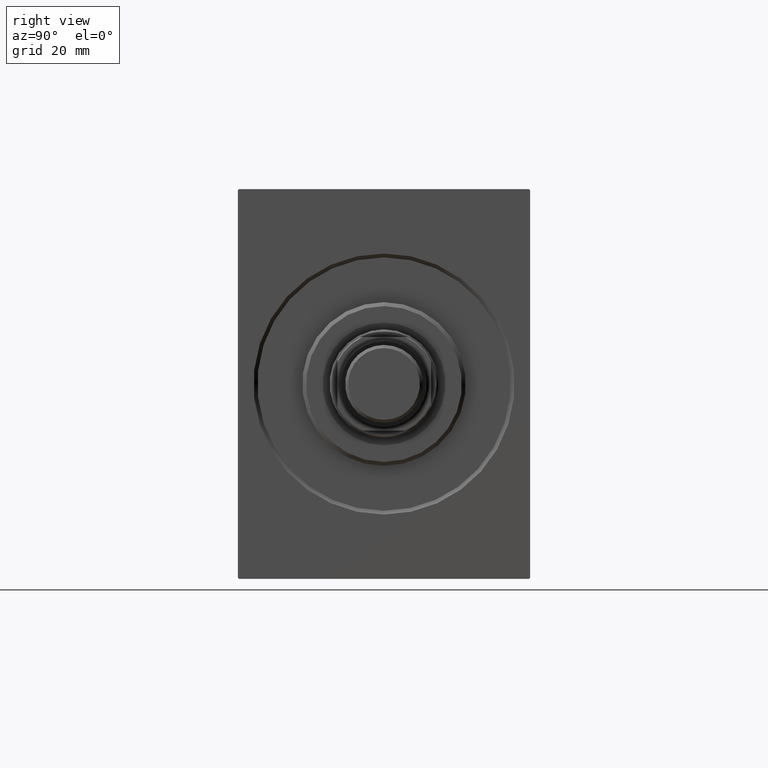
[diagram: clean part render]
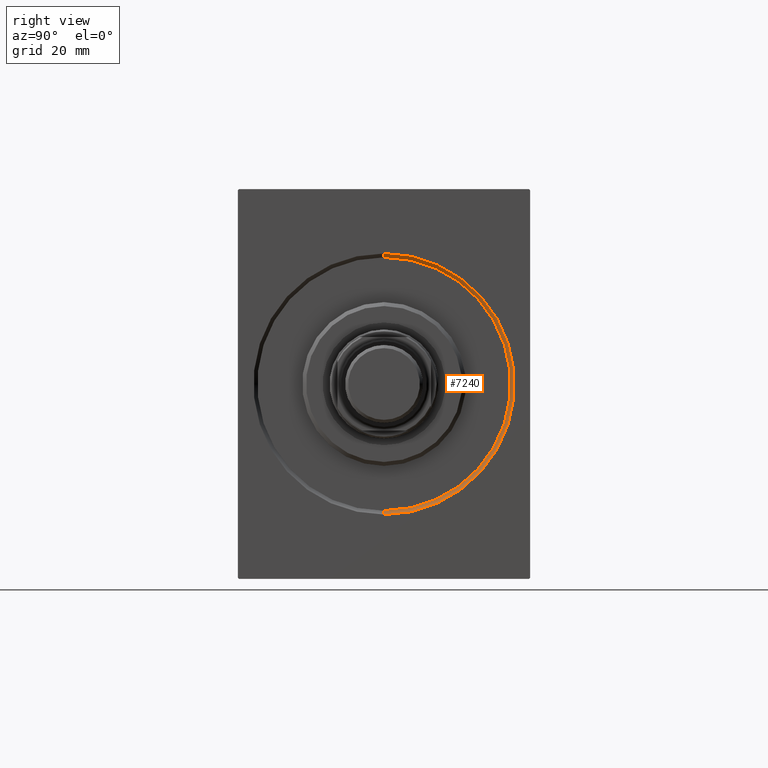
[diagram: same view with one face highlighted and labeled with its STEP entity id]
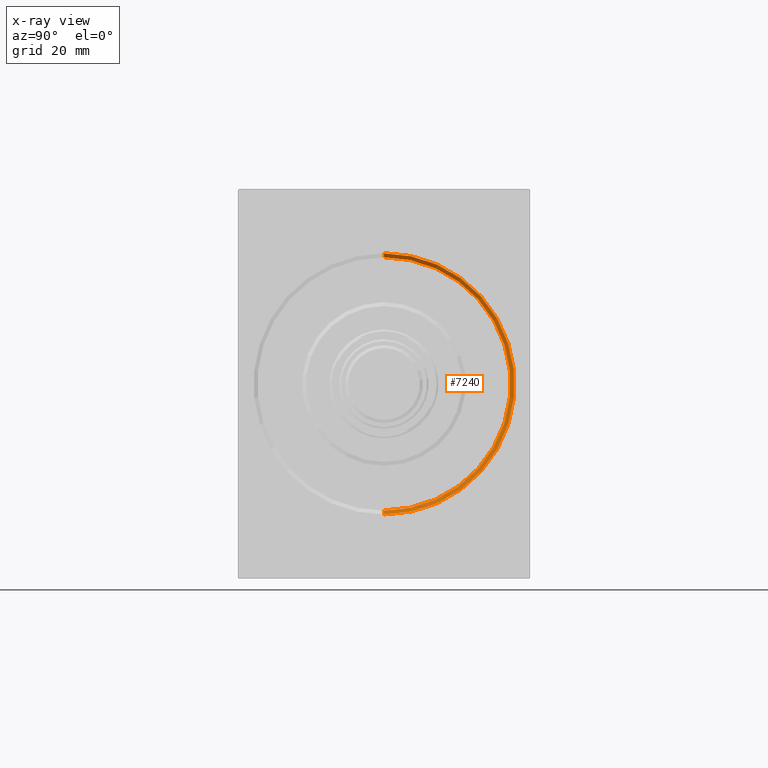
[diagram: x-ray of the same camera — body ghosted, the highlighted face saturated]
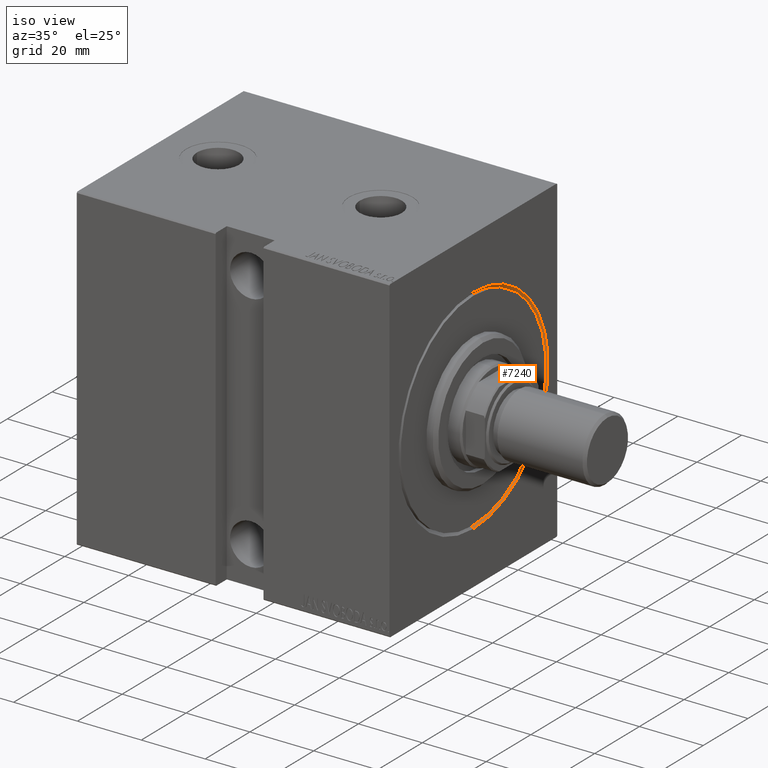
[diagram: same view with one face highlighted and labeled with its STEP entity id]
A machine part, right view. The second image highlights one B-rep face of the part: STEP entity #7240.
The next image is the same camera in x-ray: the body ghosted, the highlighted face saturated — about 0% of this face is hidden behind the body in this view.
A second angle (iso view) of the same face is appended — the face is thin or edge-on in the first view.
In plain terms, the highlighted conical surface has half-angle 45 deg.
Its self-contained STEP definition (entity closure, byte-faithful):
#1340 = EDGE_LOOP ( 'NONE', ( #21025, #10951, #20079, #37544 ) ) ;
#2978 = CARTESIAN_POINT ( 'NONE',  ( 0.9999999999999870104, 0.000000000000000000, 32.50000000000000000 ) ) ;
#3634 = CARTESIAN_POINT ( 'NONE',  ( 0.000000000000000000, 0.000000000000000000, 0.000000000000000000 ) ) ;
#4294 = VERTEX_POINT ( 'NONE', #25940 ) ;
#5563 = FACE_OUTER_BOUND ( 'NONE', #1340, .T. ) ;
#5864 = AXIS2_PLACEMENT_3D ( 'NONE', #15237, #11950, #25325 ) ;
#6719 = DIRECTION ( 'NONE',  ( -1.000000000000000000, 0.000000000000000000, 0.000000000000000000 ) ) ;
#7240 = ADVANCED_FACE ( 'NONE', ( #5563 ), #38812, .F. ) ;
#7635 = LINE ( 'NONE', #28254, #35432 ) ;
#9139 = EDGE_CURVE ( 'NONE', #35945, #13507, #40959, .T. ) ;
#9802 = AXIS2_PLACEMENT_3D ( 'NONE', #3634, #13513, #29966 ) ;
#10951 = ORIENTED_EDGE ( 'NONE', *, *, #39390, .T. ) ;
#11690 = EDGE_CURVE ( 'NONE', #13507, #4294, #7635, .T. ) ;
#11950 = DIRECTION ( 'NONE',  ( -1.000000000000000000, 0.000000000000000000, 0.000000000000000000 ) ) ;
#13507 = VERTEX_POINT ( 'NONE', #2978 ) ;
#13513 = DIRECTION ( 'NONE',  ( 1.000000000000000000, 0.000000000000000000, 0.000000000000000000 ) ) ;
#14209 = CARTESIAN_POINT ( 'NONE',  ( 0.9999999999999870104, 3.980102097228898626E-15, -32.50000000000000000 ) ) ;
#14743 = CIRCLE ( 'NONE', #9802, 33.49999999999998579 ) ;
#15237 = CARTESIAN_POINT ( 'NONE',  ( 0.9999999999999870104, 0.000000000000000000, 0.000000000000000000 ) ) ;
#16629 = LINE ( 'NONE', #14209, #25920 ) ;
#20079 = ORIENTED_EDGE ( 'NONE', *, *, #34536, .F. ) ;
#20632 = AXIS2_PLACEMENT_3D ( 'NONE', #33507, #6719, #33287 ) ;
#21025 = ORIENTED_EDGE ( 'NONE', *, *, #9139, .F. ) ;
#25325 = DIRECTION ( 'NONE',  ( 0.000000000000000000, 0.000000000000000000, 1.000000000000000000 ) ) ;
#25514 = CARTESIAN_POINT ( 'NONE',  ( 0.9999999999999870104, 3.980102097228898626E-15, -32.50000000000000000 ) ) ;
#25920 = VECTOR ( 'NONE', #30880, 1000.000000000000114 ) ;
#25940 = CARTESIAN_POINT ( 'NONE',  ( 0.000000000000000000, 0.000000000000000000, 33.49999999999998579 ) ) ;
#28254 = CARTESIAN_POINT ( 'NONE',  ( 0.9999999999999870104, 0.000000000000000000, 32.50000000000000000 ) ) ;
#29966 = DIRECTION ( 'NONE',  ( 0.000000000000000000, 0.000000000000000000, -1.000000000000000000 ) ) ;
#30880 = DIRECTION ( 'NONE',  ( -0.7071067811865474617, 8.659560562354932858E-17, -0.7071067811865474617 ) ) ;
#33287 = DIRECTION ( 'NONE',  ( 0.000000000000000000, 0.000000000000000000, -1.000000000000000000 ) ) ;
#33507 = CARTESIAN_POINT ( 'NONE',  ( 0.9999999999999870104, 0.000000000000000000, 0.000000000000000000 ) ) ;
#34536 = EDGE_CURVE ( 'NONE', #4294, #40923, #14743, .T. ) ;
#35432 = VECTOR ( 'NONE', #37703, 1000.000000000000114 ) ;
#35945 = VERTEX_POINT ( 'NONE', #25514 ) ;
#37544 = ORIENTED_EDGE ( 'NONE', *, *, #11690, .F. ) ;
#37703 = DIRECTION ( 'NONE',  ( -0.7071067811865474617, 0.000000000000000000, 0.7071067811865474617 ) ) ;
#38807 = CARTESIAN_POINT ( 'NONE',  ( 0.000000000000000000, 4.102566777143632196E-15, -33.49999999999998579 ) ) ;
#38812 = CONICAL_SURFACE ( 'NONE', #5864, 32.50000000000000000, 0.7853981633974482790 ) ;
#39390 = EDGE_CURVE ( 'NONE', #35945, #40923, #16629, .T. ) ;
#40923 = VERTEX_POINT ( 'NONE', #38807 ) ;
#40959 = CIRCLE ( 'NONE', #20632, 32.50000000000000000 ) ;